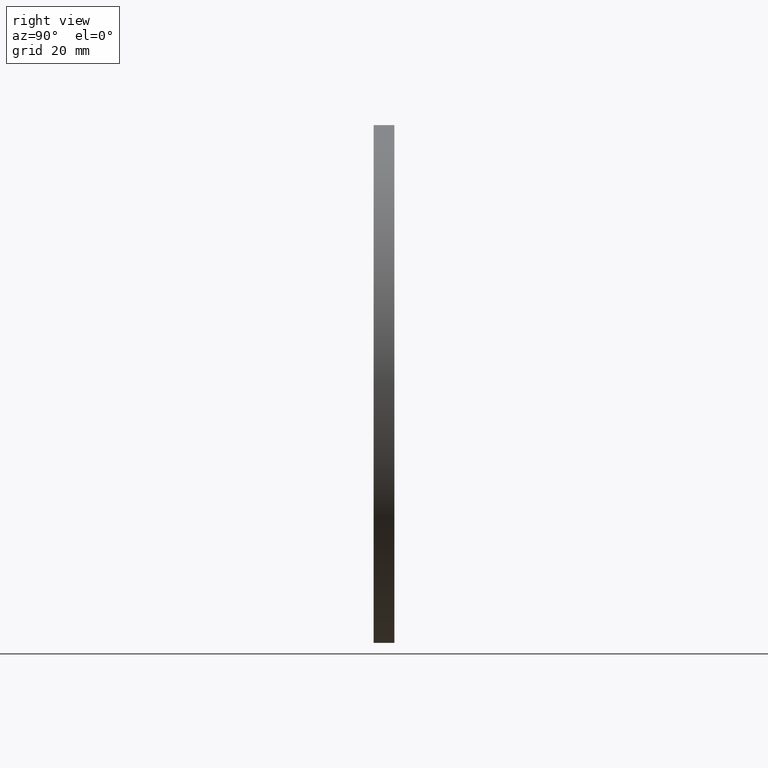
[diagram: clean part render]
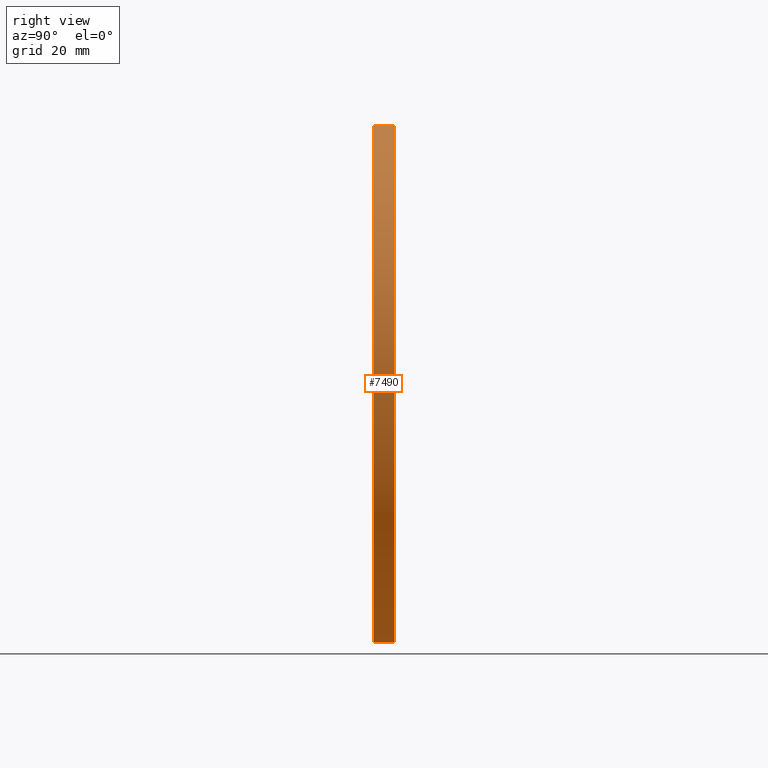
[diagram: same view with one face highlighted and labeled with its STEP entity id]
A machine part, right view. The second image highlights one B-rep face of the part: STEP entity #7490.
In plain terms, the highlighted cylindrical surface (partial cylindrical patch) has radius 50 mm, axis along (-0, -1, -0).
Its self-contained STEP definition (entity closure, byte-faithful):
#1464 = DIRECTION ( 'NONE',  ( -0.000000000000000000, -1.000000000000000000, -0.000000000000000000 ) ) ;
#1720 = CIRCLE ( 'NONE', #1983, 50.00000000000000000 ) ;
#1772 = CARTESIAN_POINT ( 'NONE',  ( 0.000000000000000000, 4.000000000000000000, -50.00000000000000000 ) ) ;
#1827 = ORIENTED_EDGE ( 'NONE', *, *, #6580, .T. ) ;
#1983 = AXIS2_PLACEMENT_3D ( 'NONE', #4088, #2975, #12606 ) ;
#2107 = CARTESIAN_POINT ( 'NONE',  ( 0.000000000000000000, 4.000000000000000000, -50.00000000000000000 ) ) ;
#2905 = DIRECTION ( 'NONE',  ( 0.000000000000000000, 0.000000000000000000, 1.000000000000000000 ) ) ;
#2941 = AXIS2_PLACEMENT_3D ( 'NONE', #7516, #1464, #3932 ) ;
#2975 = DIRECTION ( 'NONE',  ( 0.000000000000000000, 1.000000000000000000, 0.000000000000000000 ) ) ;
#3034 = LINE ( 'NONE', #11624, #12507 ) ;
#3741 = ORIENTED_EDGE ( 'NONE', *, *, #4141, .F. ) ;
#3932 = DIRECTION ( 'NONE',  ( 0.000000000000000000, 0.000000000000000000, -1.000000000000000000 ) ) ;
#4088 = CARTESIAN_POINT ( 'NONE',  ( 0.000000000000000000, 0.000000000000000000, 0.000000000000000000 ) ) ;
#4141 = EDGE_CURVE ( 'NONE', #12089, #7183, #15390, .T. ) ;
#6115 = ORIENTED_EDGE ( 'NONE', *, *, #6408, .T. ) ;
#6408 = EDGE_CURVE ( 'NONE', #10224, #7183, #1720, .T. ) ;
#6580 = EDGE_CURVE ( 'NONE', #10080, #10224, #3034, .T. ) ;
#7183 = VERTEX_POINT ( 'NONE', #15242 ) ;
#7490 = ADVANCED_FACE ( 'NONE', ( #9615 ), #10743, .T. ) ;
#7516 = CARTESIAN_POINT ( 'NONE',  ( 0.000000000000000000, 4.000000000000000000, 0.000000000000000000 ) ) ;
#7964 = CARTESIAN_POINT ( 'NONE',  ( 6.123233995736766085E-15, 0.000000000000000000, 50.00000000000000000 ) ) ;
#8202 = EDGE_CURVE ( 'NONE', #10080, #12089, #12258, .T. ) ;
#8905 = AXIS2_PLACEMENT_3D ( 'NONE', #8924, #10142, #2905 ) ;
#8924 = CARTESIAN_POINT ( 'NONE',  ( 0.000000000000000000, 4.000000000000000000, 0.000000000000000000 ) ) ;
#9213 = ORIENTED_EDGE ( 'NONE', *, *, #8202, .F. ) ;
#9615 = FACE_OUTER_BOUND ( 'NONE', #14750, .T. ) ;
#9619 = DIRECTION ( 'NONE',  ( -0.000000000000000000, -1.000000000000000000, -0.000000000000000000 ) ) ;
#10080 = VERTEX_POINT ( 'NONE', #15483 ) ;
#10142 = DIRECTION ( 'NONE',  ( 0.000000000000000000, 1.000000000000000000, 0.000000000000000000 ) ) ;
#10224 = VERTEX_POINT ( 'NONE', #7964 ) ;
#10718 = DIRECTION ( 'NONE',  ( -0.000000000000000000, -1.000000000000000000, -0.000000000000000000 ) ) ;
#10743 = CYLINDRICAL_SURFACE ( 'NONE', #2941, 50.00000000000000000 ) ;
#11624 = CARTESIAN_POINT ( 'NONE',  ( 6.123233995736766085E-15, 4.000000000000000000, 50.00000000000000000 ) ) ;
#12089 = VERTEX_POINT ( 'NONE', #1772 ) ;
#12176 = VECTOR ( 'NONE', #10718, 1000.000000000000000 ) ;
#12258 = CIRCLE ( 'NONE', #8905, 50.00000000000000000 ) ;
#12507 = VECTOR ( 'NONE', #9619, 1000.000000000000000 ) ;
#12606 = DIRECTION ( 'NONE',  ( 0.000000000000000000, 0.000000000000000000, 1.000000000000000000 ) ) ;
#14750 = EDGE_LOOP ( 'NONE', ( #9213, #1827, #6115, #3741 ) ) ;
#15242 = CARTESIAN_POINT ( 'NONE',  ( 0.000000000000000000, 0.000000000000000000, -50.00000000000000000 ) ) ;
#15390 = LINE ( 'NONE', #2107, #12176 ) ;
#15483 = CARTESIAN_POINT ( 'NONE',  ( 6.123233995736766085E-15, 4.000000000000000000, 50.00000000000000000 ) ) ;